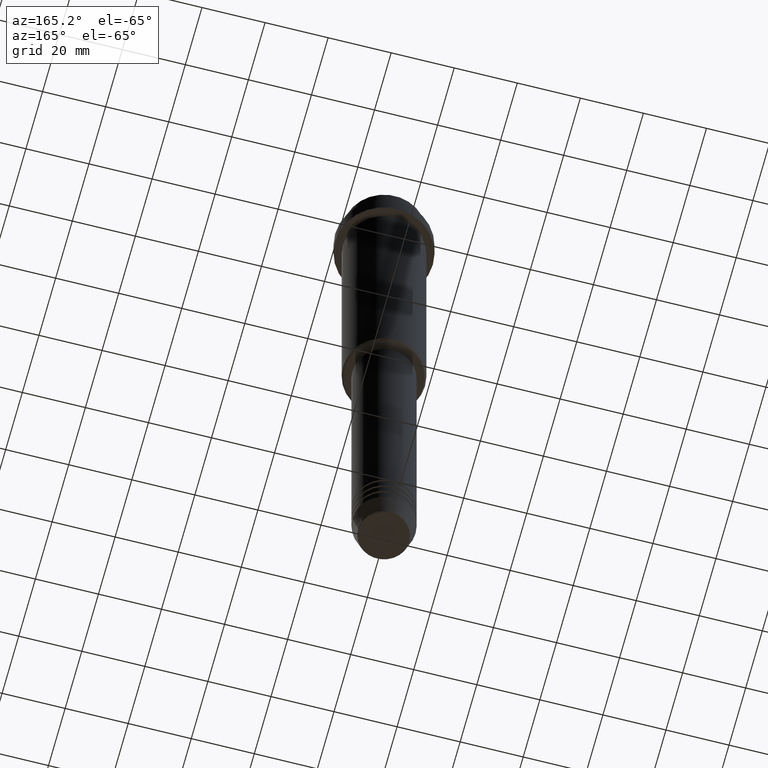
[diagram: clean part render]
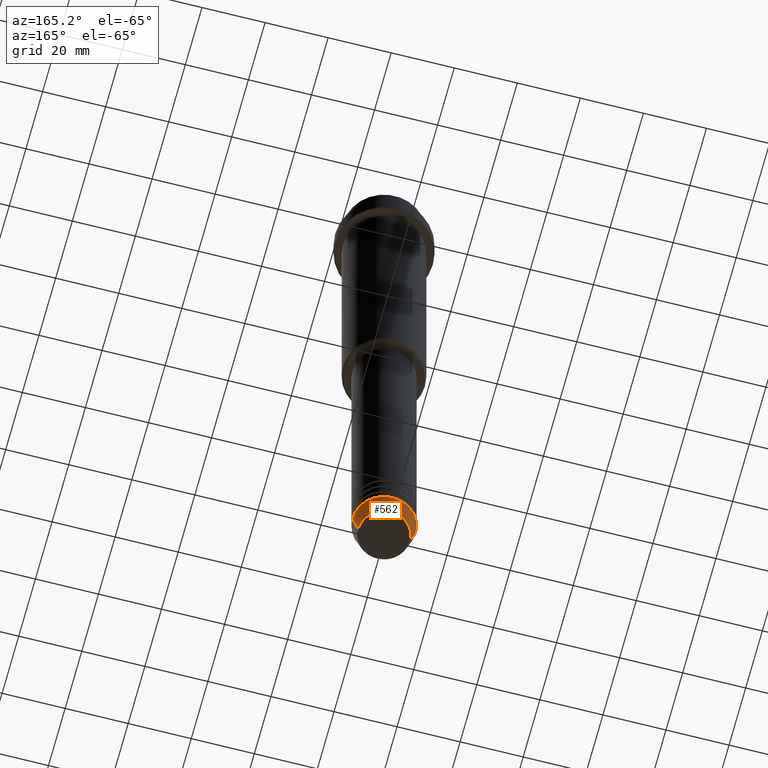
[diagram: same view with one face highlighted and labeled with its STEP entity id]
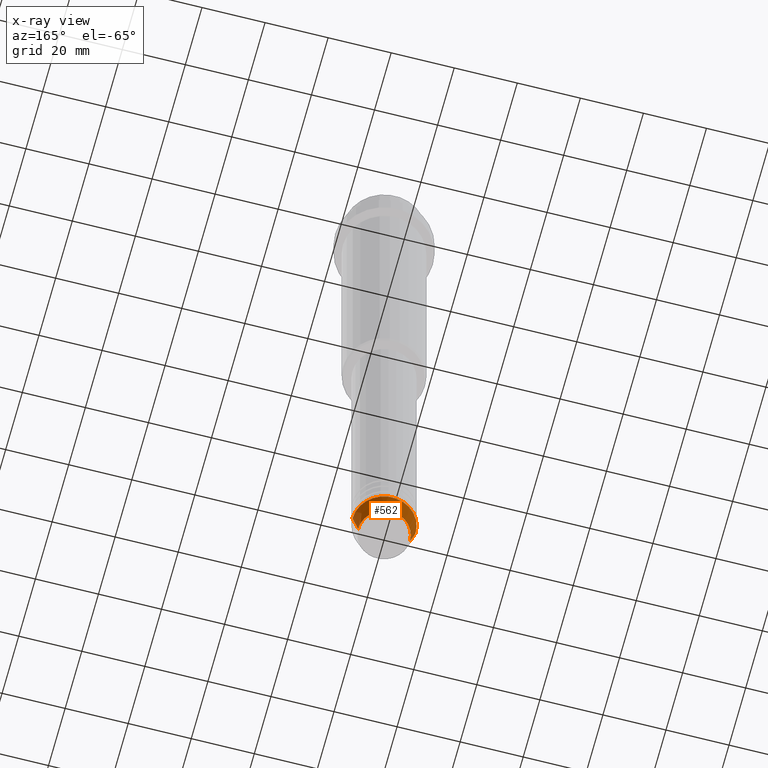
[diagram: x-ray of the same camera — body ghosted, the highlighted face saturated]
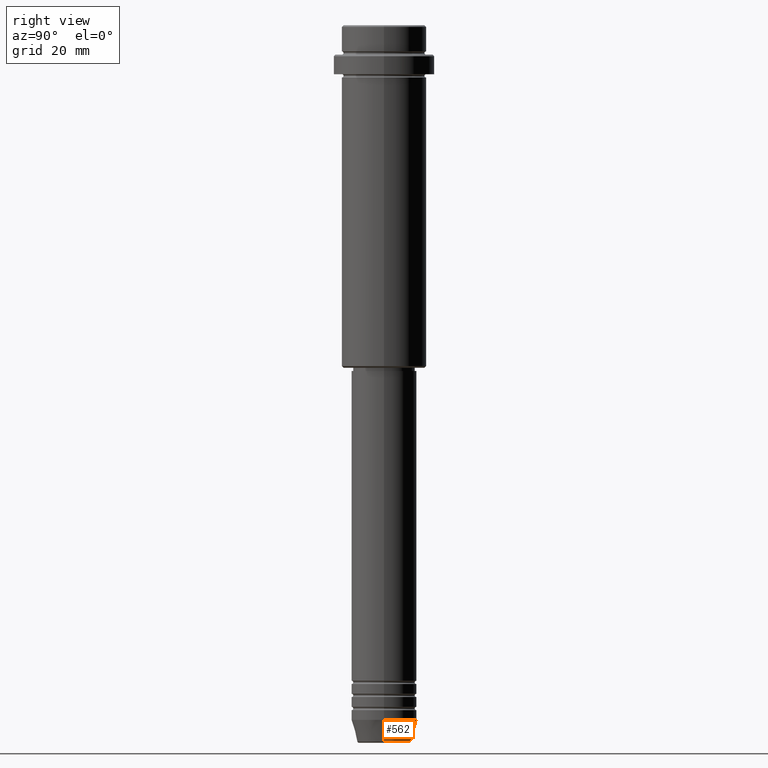
[diagram: same view with one face highlighted and labeled with its STEP entity id]
A machine part, auxiliary view. The second image highlights one B-rep face of the part: STEP entity #562.
The next image is the same camera in x-ray: the body ghosted, the highlighted face saturated — about 0% of this face is hidden behind the body in this view.
A second angle (right view) of the same face is appended — the face is thin or edge-on in the first view.
In plain terms, the highlighted conical surface has half-angle 15 deg.
Its self-contained STEP definition (entity closure, byte-faithful):
#5 = ORIENTED_EDGE ( 'NONE', *, *, #754, .T. ) ;
#52 = EDGE_CURVE ( 'NONE', #1033, #1369, #281, .T. ) ;
#100 = CARTESIAN_POINT ( 'NONE',  ( -10.00000000000000000, 1.224646799147353256E-15, -213.0000000000000284 ) ) ;
#135 = ORIENTED_EDGE ( 'NONE', *, *, #52, .F. ) ;
#198 = CARTESIAN_POINT ( 'NONE',  ( 0.000000000000000000, 0.000000000000000000, -213.0000000000000284 ) ) ;
#243 = VERTEX_POINT ( 'NONE', #246 ) ;
#246 = CARTESIAN_POINT ( 'NONE',  ( -8.223655072137193045, 1.115877042642912251E-15, -219.6294095225512990 ) ) ;
#254 = ORIENTED_EDGE ( 'NONE', *, *, #1382, .F. ) ;
#281 = LINE ( 'NONE', #943, #710 ) ;
#282 = CARTESIAN_POINT ( 'NONE',  ( 0.000000000000000000, 0.000000000000000000, -213.0000000000000284 ) ) ;
#313 = CONICAL_SURFACE ( 'NONE', #1091, 10.00000000000000000, 0.2617993877991491303 ) ;
#424 = FACE_OUTER_BOUND ( 'NONE', #475, .T. ) ;
#475 = EDGE_LOOP ( 'NONE', ( #1321, #5, #254, #135 ) ) ;
#551 = CIRCLE ( 'NONE', #921, 8.223655072137193045 ) ;
#562 = ADVANCED_FACE ( 'NONE', ( #424 ), #313, .T. ) ;
#578 = AXIS2_PLACEMENT_3D ( 'NONE', #282, #1252, #722 ) ;
#710 = VECTOR ( 'NONE', #1270, 1000.000000000000114 ) ;
#716 = CIRCLE ( 'NONE', #578, 10.00000000000000000 ) ;
#722 = DIRECTION ( 'NONE',  ( 1.000000000000000000, 0.000000000000000000, 0.000000000000000000 ) ) ;
#744 = CARTESIAN_POINT ( 'NONE',  ( 8.223655072137193045, 0.000000000000000000, -219.6294095225512990 ) ) ;
#754 = EDGE_CURVE ( 'NONE', #243, #1280, #1006, .T. ) ;
#758 = DIRECTION ( 'NONE',  ( 1.000000000000000000, 0.000000000000000000, 0.000000000000000000 ) ) ;
#906 = EDGE_CURVE ( 'NONE', #1033, #243, #551, .T. ) ;
#921 = AXIS2_PLACEMENT_3D ( 'NONE', #1157, #1178, #758 ) ;
#943 = CARTESIAN_POINT ( 'NONE',  ( 10.00000000000000000, 0.000000000000000000, -213.0000000000000284 ) ) ;
#951 = DIRECTION ( 'NONE',  ( 1.000000000000000000, 0.000000000000000000, 0.000000000000000000 ) ) ;
#984 = DIRECTION ( 'NONE',  ( -0.2588190451025205174, 3.169619151431761243E-17, 0.9659258262890684232 ) ) ;
#1006 = LINE ( 'NONE', #100, #1209 ) ;
#1033 = VERTEX_POINT ( 'NONE', #744 ) ;
#1091 = AXIS2_PLACEMENT_3D ( 'NONE', #198, #1386, #951 ) ;
#1144 = CARTESIAN_POINT ( 'NONE',  ( 10.00000000000000000, 0.000000000000000000, -213.0000000000000284 ) ) ;
#1157 = CARTESIAN_POINT ( 'NONE',  ( 0.000000000000000000, 0.000000000000000000, -219.6294095225512990 ) ) ;
#1178 = DIRECTION ( 'NONE',  ( -0.000000000000000000, -0.000000000000000000, 1.000000000000000000 ) ) ;
#1209 = VECTOR ( 'NONE', #984, 1000.000000000000114 ) ;
#1252 = DIRECTION ( 'NONE',  ( -0.000000000000000000, -0.000000000000000000, 1.000000000000000000 ) ) ;
#1270 = DIRECTION ( 'NONE',  ( 0.2588190451025205174, 0.000000000000000000, 0.9659258262890684232 ) ) ;
#1280 = VERTEX_POINT ( 'NONE', #1356 ) ;
#1321 = ORIENTED_EDGE ( 'NONE', *, *, #906, .T. ) ;
#1356 = CARTESIAN_POINT ( 'NONE',  ( -10.00000000000000000, 1.224646799147353256E-15, -213.0000000000000284 ) ) ;
#1369 = VERTEX_POINT ( 'NONE', #1144 ) ;
#1382 = EDGE_CURVE ( 'NONE', #1369, #1280, #716, .T. ) ;
#1386 = DIRECTION ( 'NONE',  ( -0.000000000000000000, -0.000000000000000000, 1.000000000000000000 ) ) ;